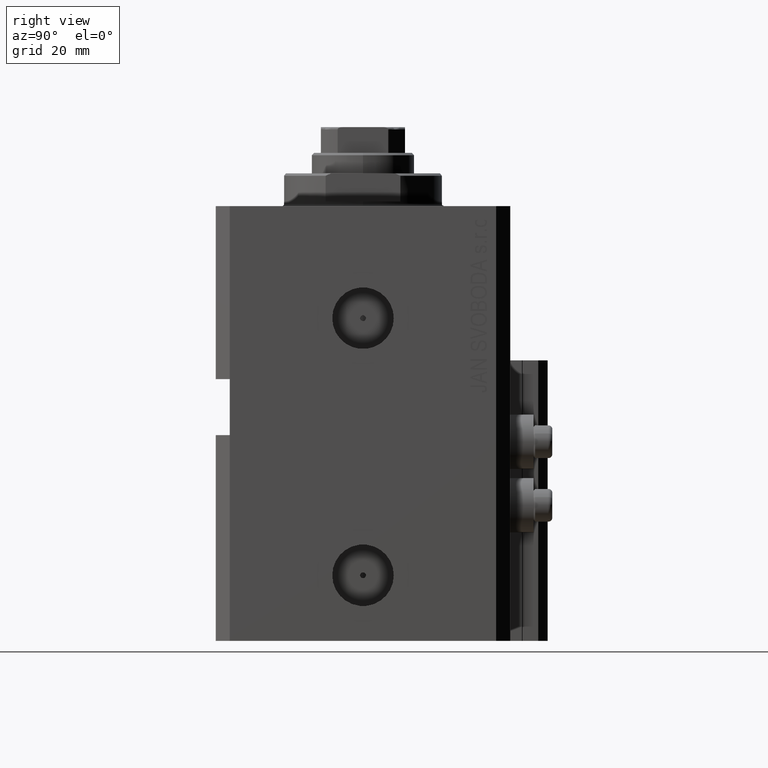
[diagram: clean part render]
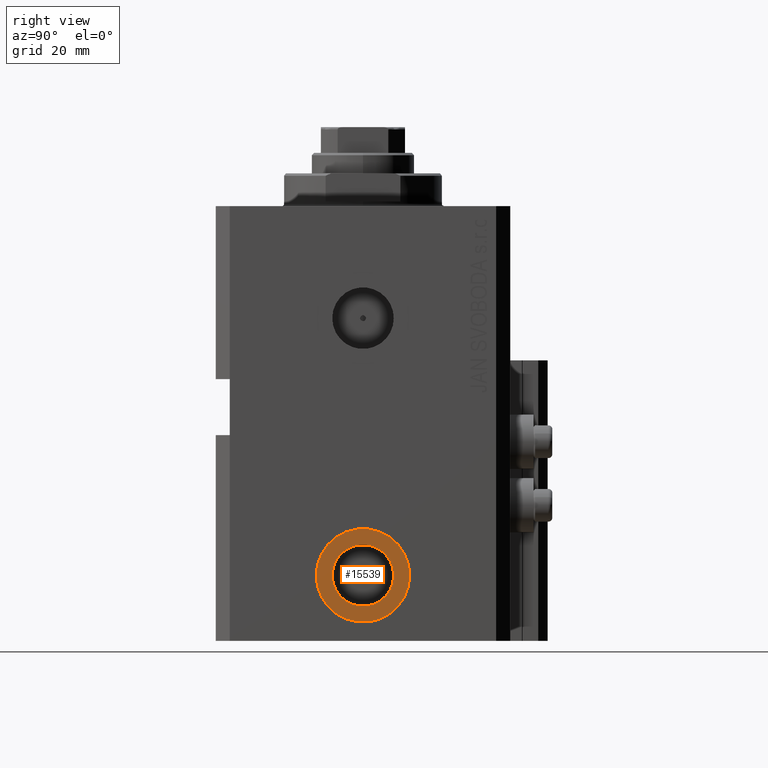
[diagram: same view with one face highlighted and labeled with its STEP entity id]
A machine part, right view. The second image highlights one B-rep face of the part: STEP entity #15539.
In plain terms, the highlighted planar face has unit normal (1, -0, 0).
Its self-contained STEP definition (entity closure, byte-faithful):
#102 = EDGE_CURVE ( 'NONE', #21174, #42976, #19855, .T. ) ;
#2856 = CIRCLE ( 'NONE', #47133, 9.999999999999994671 ) ;
#3345 = CIRCLE ( 'NONE', #40636, 9.999999999999994671 ) ;
#3913 = DIRECTION ( 'NONE',  ( 1.370906090437600963E-14, 1.000000000000000000, 0.000000000000000000 ) ) ;
#3986 = EDGE_LOOP ( 'NONE', ( #40291, #21659 ) ) ;
#4643 = CARTESIAN_POINT ( 'NONE',  ( 42.40000000000026148, -3.763483751660370480E-13, -79.00000000000000000 ) ) ;
#5437 = VERTEX_POINT ( 'NONE', #15671 ) ;
#5947 = CARTESIAN_POINT ( 'NONE',  ( 42.40000000000026148, -3.763483751660370480E-13, -79.00000000000000000 ) ) ;
#6188 = FACE_BOUND ( 'NONE', #3986, .T. ) ;
#6804 = CARTESIAN_POINT ( 'NONE',  ( 42.40000000000035385, 6.579999999999611049, -79.00000000000000000 ) ) ;
#9354 = FACE_OUTER_BOUND ( 'NONE', #46613, .T. ) ;
#9370 = CARTESIAN_POINT ( 'NONE',  ( 42.40000000000039648, 9.999999999999618083, -79.00000000000000000 ) ) ;
#10451 = ORIENTED_EDGE ( 'NONE', *, *, #22794, .T. ) ;
#11716 = CARTESIAN_POINT ( 'NONE',  ( 42.40000000000017621, -6.580000000000363336, -79.00000000000000000 ) ) ;
#13475 = DIRECTION ( 'NONE',  ( 1.000000000000000000, -1.334402673828349134E-14, 0.000000000000000000 ) ) ;
#14438 = DIRECTION ( 'NONE',  ( 1.000000000000000000, -1.334402673828349134E-14, 0.000000000000000000 ) ) ;
#15339 = DIRECTION ( 'NONE',  ( 1.000000000000000000, -1.334402673828349134E-14, 0.000000000000000000 ) ) ;
#15539 = ADVANCED_FACE ( 'NONE', ( #6188, #9354 ), #16892, .T. ) ;
#15671 = CARTESIAN_POINT ( 'NONE',  ( 42.40000000000013358, -10.00000000000037126, -79.00000000000000000 ) ) ;
#16892 = PLANE ( 'NONE',  #45321 ) ;
#19855 = CIRCLE ( 'NONE', #26048, 6.579999999999987637 ) ;
#21174 = VERTEX_POINT ( 'NONE', #11716 ) ;
#21659 = ORIENTED_EDGE ( 'NONE', *, *, #102, .F. ) ;
#22794 = EDGE_CURVE ( 'NONE', #45816, #5437, #2856, .T. ) ;
#25150 = DIRECTION ( 'NONE',  ( 1.000000000000000000, -1.334402673828349134E-14, 0.000000000000000000 ) ) ;
#25868 = DIRECTION ( 'NONE',  ( 1.370906090437600963E-14, 1.000000000000000000, 0.000000000000000000 ) ) ;
#26048 = AXIS2_PLACEMENT_3D ( 'NONE', #4643, #15339, #3913 ) ;
#26353 = CARTESIAN_POINT ( 'NONE',  ( 42.40000000000026148, -3.763483751660370480E-13, -79.00000000000000000 ) ) ;
#28531 = CARTESIAN_POINT ( 'NONE',  ( 42.40000000000026148, -3.763483751660370480E-13, -79.00000000000000000 ) ) ;
#31740 = DIRECTION ( 'NONE',  ( 1.334402673828349134E-14, 1.000000000000000000, 0.000000000000000000 ) ) ;
#32413 = DIRECTION ( 'NONE',  ( 1.318389841742374023E-14, 1.000000000000000000, 0.000000000000000000 ) ) ;
#32869 = CIRCLE ( 'NONE', #33631, 6.579999999999987637 ) ;
#33631 = AXIS2_PLACEMENT_3D ( 'NONE', #26353, #14438, #25868 ) ;
#35828 = DIRECTION ( 'NONE',  ( 1.000000000000000000, -1.334402673828349134E-14, 0.000000000000000000 ) ) ;
#40291 = ORIENTED_EDGE ( 'NONE', *, *, #45968, .F. ) ;
#40446 = DIRECTION ( 'NONE',  ( 1.318389841742374023E-14, 1.000000000000000000, 0.000000000000000000 ) ) ;
#40636 = AXIS2_PLACEMENT_3D ( 'NONE', #28531, #35828, #32413 ) ;
#42976 = VERTEX_POINT ( 'NONE', #6804 ) ;
#43402 = CARTESIAN_POINT ( 'NONE',  ( 42.40000000000026148, -3.763483751660370480E-13, -79.00000000000000000 ) ) ;
#45321 = AXIS2_PLACEMENT_3D ( 'NONE', #5947, #13475, #31740 ) ;
#45400 = ORIENTED_EDGE ( 'NONE', *, *, #46206, .T. ) ;
#45816 = VERTEX_POINT ( 'NONE', #9370 ) ;
#45968 = EDGE_CURVE ( 'NONE', #42976, #21174, #32869, .T. ) ;
#46206 = EDGE_CURVE ( 'NONE', #5437, #45816, #3345, .T. ) ;
#46613 = EDGE_LOOP ( 'NONE', ( #10451, #45400 ) ) ;
#47133 = AXIS2_PLACEMENT_3D ( 'NONE', #43402, #25150, #40446 ) ;